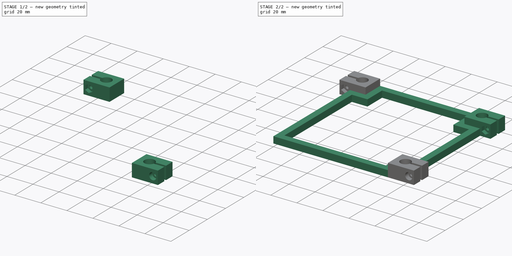
[diagram: build sequence overview — one tinted view per stage of 2, left to right]
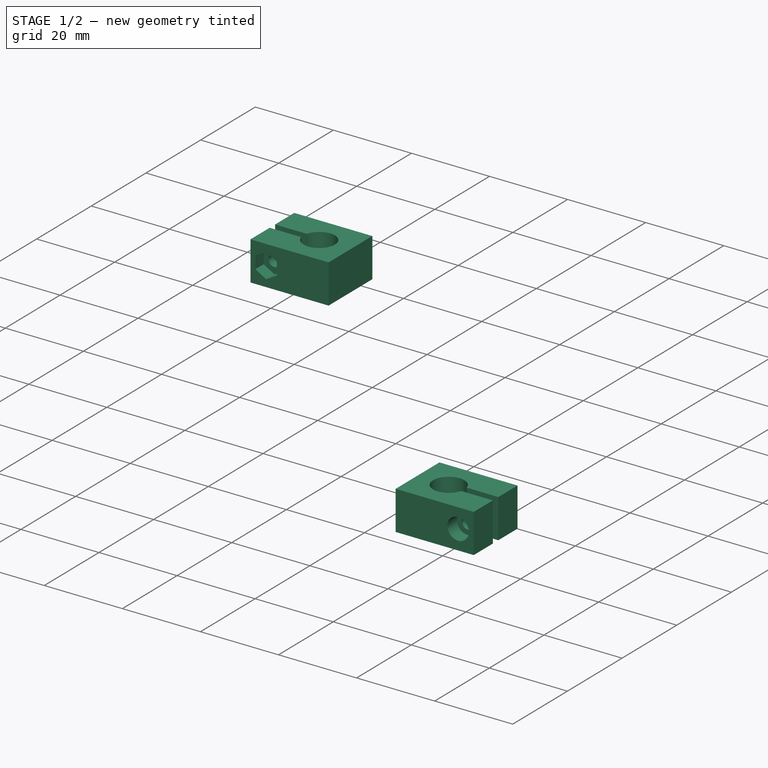
[diagram: stage 1 of 2 — iso view after this stage's code; geometry added in this stage tinted green]
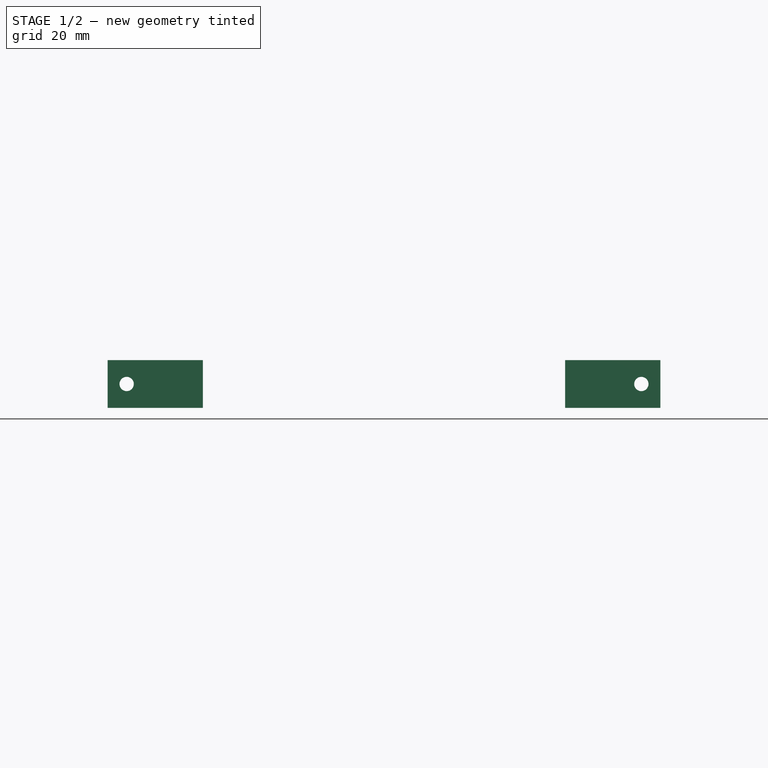
[diagram: stage 1 of 2 — front view after this stage's code; geometry added in this stage tinted green]
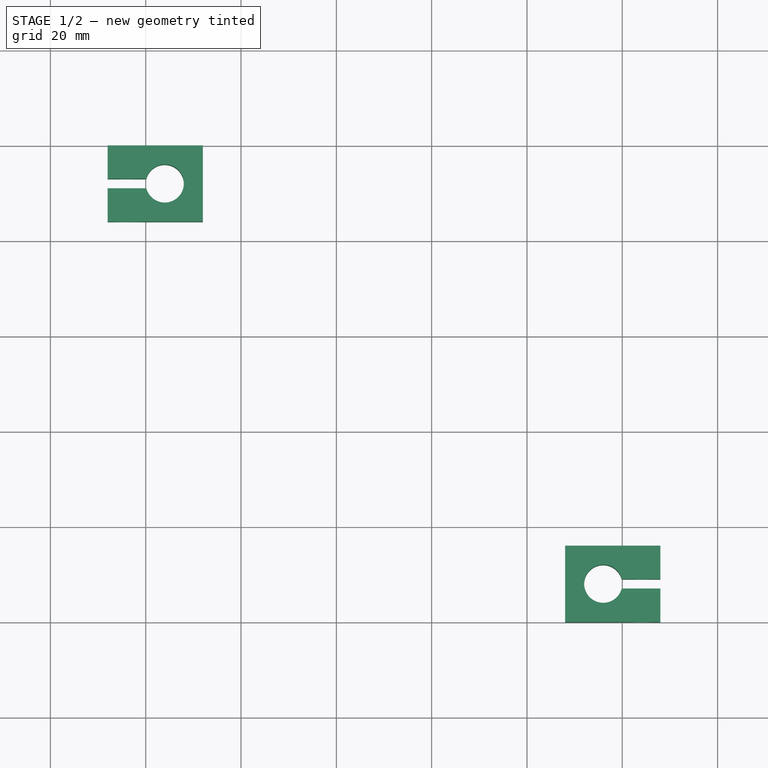
[diagram: stage 1 of 2 — top view after this stage's code; geometry added in this stage tinted green]
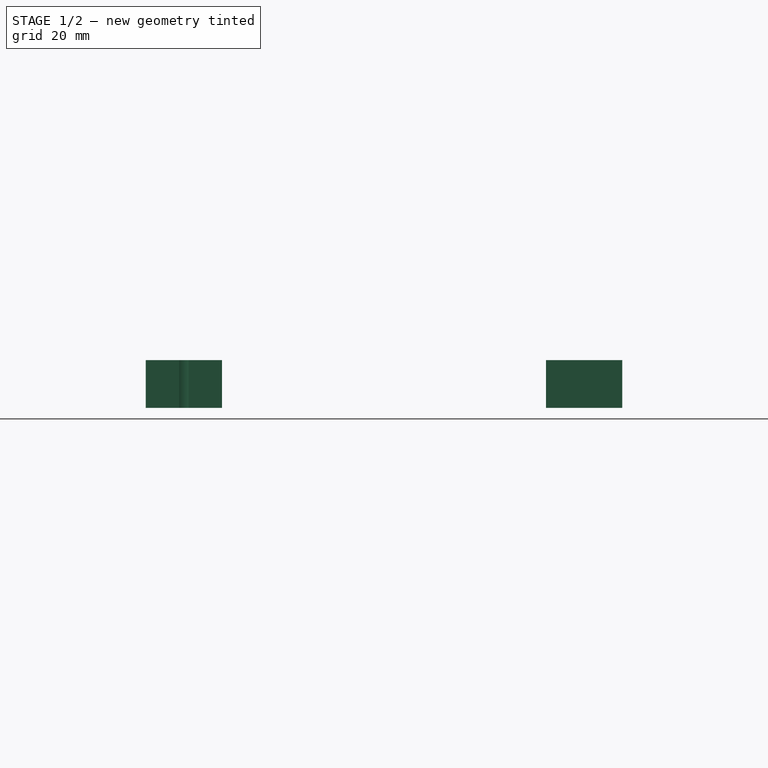
[diagram: stage 1 of 2 — right view after this stage's code; geometry added in this stage tinted green]
FCSTD DOCUMENT
Label: EndPlate
objects: PartDesign::Pocket×3, Sketcher::SketchObject×1, PartDesign::Pad×1
note: 6 computed .brp shape members not serialized (recipe doc carries the construction recipe); baked Part::Feature solids carry a one-line shape summary decoded from their .brp

FEATURE [PartDesign::Pocket] Pocket001  label="Clamp1"
  Length = 3
  Placement = pos=(12,84,10) rot=(0,1,0;3.14159rad)
  Type = 0
FEATURE [PartDesign::Pocket] Pocket002  label="Clamp2"
  Length = 3
  Placement = pos=(88,16,10) rot=(1,0,0;3.14159rad)
  Type = 0
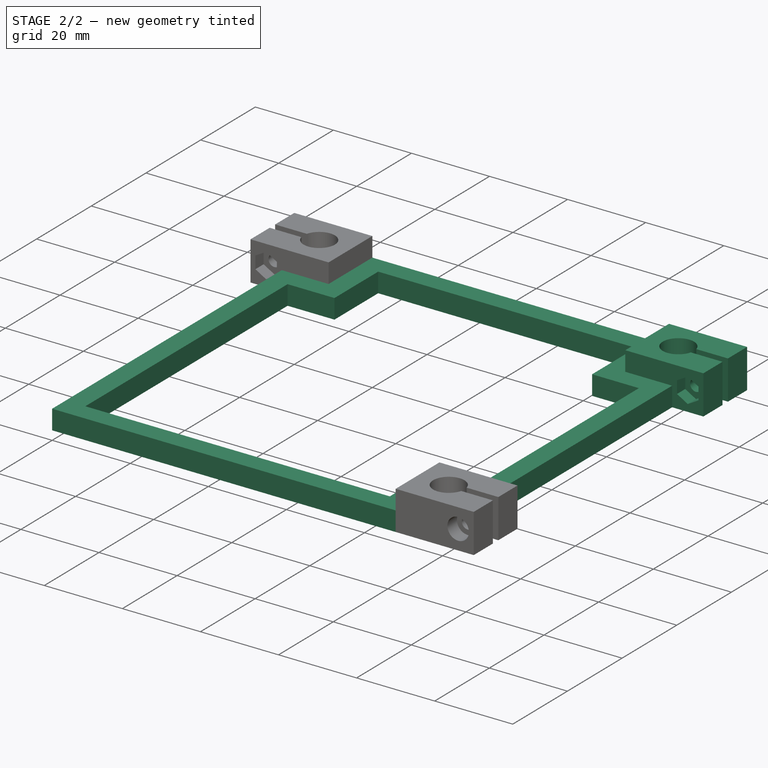
[diagram: stage 2 of 2 — iso view after this stage's code; geometry added in this stage tinted green]
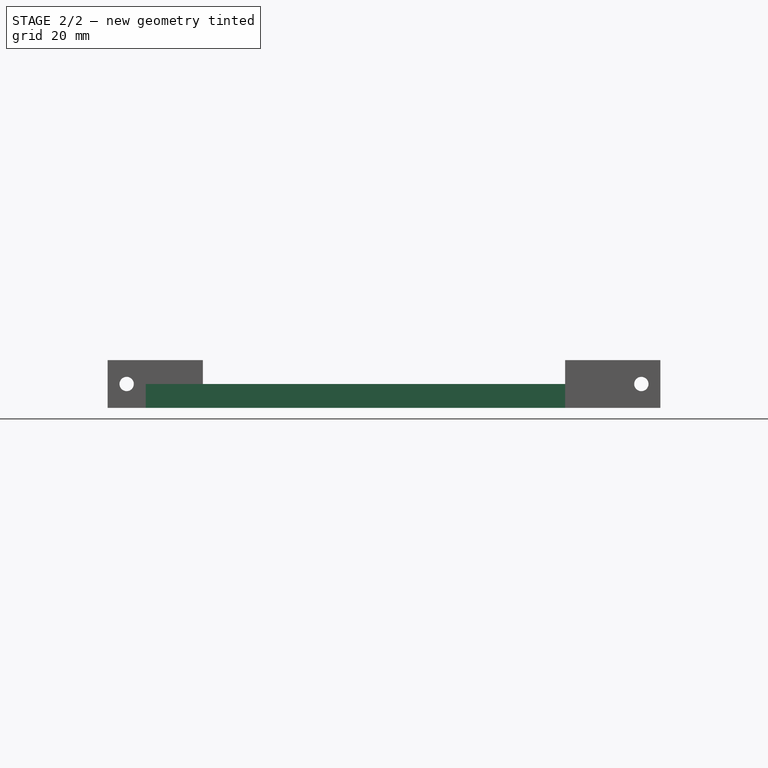
[diagram: stage 2 of 2 — front view after this stage's code; geometry added in this stage tinted green]
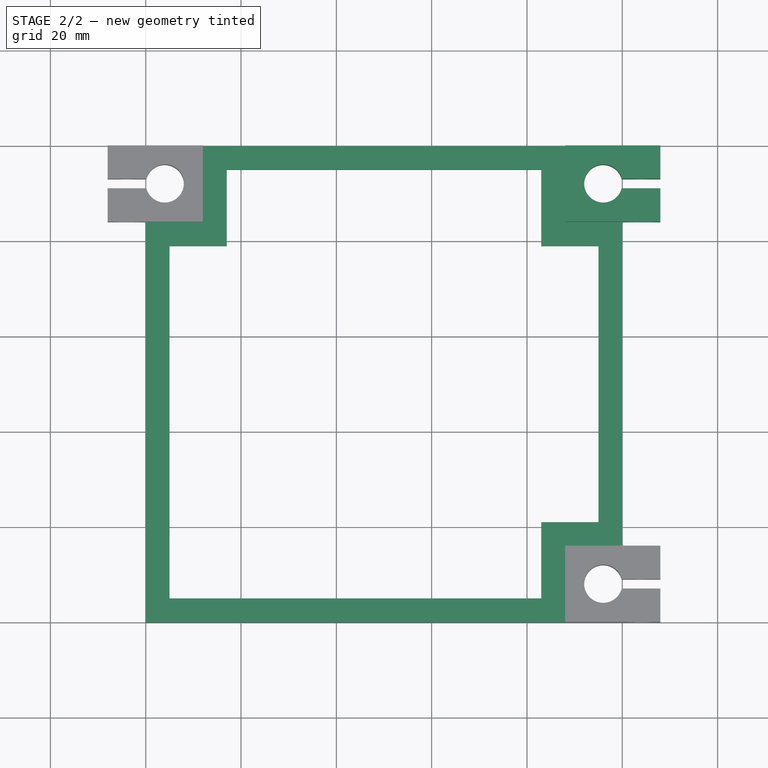
[diagram: stage 2 of 2 — top view after this stage's code; geometry added in this stage tinted green]
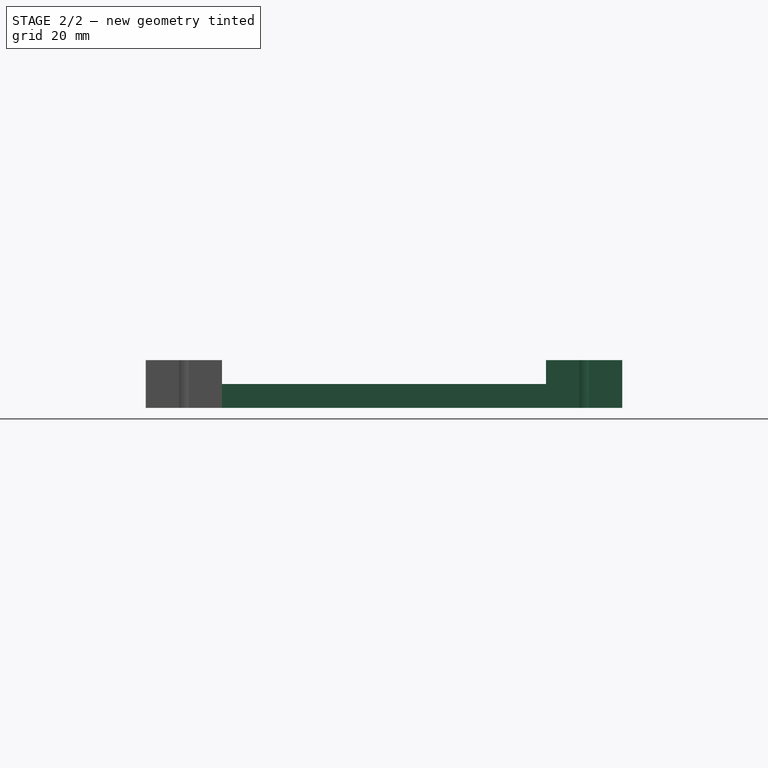
[diagram: stage 2 of 2 — right view after this stage's code; geometry added in this stage tinted green]
FEATURE [Sketcher::SketchObject] Sketch
  sketch-geometry (20):
    g0: LineSegment StartX=0 StartY=0 StartZ=0 EndX=0 EndY=84 EndZ=0
    g1: LineSegment StartX=12 StartY=100 StartZ=0 EndX=88 EndY=100 EndZ=0
    g2: LineSegment StartX=100 StartY=84 StartZ=0 EndX=100 EndY=16 EndZ=0
    g3: LineSegment StartX=88 StartY=0 StartZ=0 EndX=0 EndY=0 EndZ=0
    g4: LineSegment StartX=0 StartY=84 StartZ=0 EndX=12 EndY=84 EndZ=0
    g5: LineSegment StartX=12 StartY=84 StartZ=0 EndX=12 EndY=100 EndZ=0
    g6: LineSegment StartX=88 StartY=100 StartZ=0 EndX=88 EndY=84 EndZ=0
    g7: LineSegment StartX=88 StartY=84 StartZ=0 EndX=100 EndY=84 EndZ=0
    g8: LineSegment StartX=100 StartY=16 StartZ=0 EndX=88 EndY=16 EndZ=0
    g9: LineSegment StartX=88 StartY=16 StartZ=0 EndX=88 EndY=0 EndZ=0
    g10: LineSegment StartX=17 StartY=95 StartZ=0 EndX=83 EndY=95 EndZ=0
    g11: LineSegment StartX=83 StartY=95 StartZ=0 EndX=83 EndY=79 EndZ=0
    g12: LineSegment StartX=83 StartY=79 StartZ=0 EndX=95 EndY=79 EndZ=0
    g13: LineSegment StartX=95 StartY=79 StartZ=0 EndX=95 EndY=21 EndZ=0
    g14: LineSegment StartX=95 StartY=21 StartZ=0 EndX=83 EndY=21 EndZ=0
    g15: LineSegment StartX=83 StartY=21 StartZ=0 EndX=83 EndY=5 EndZ=0
    g16: LineSegment StartX=83 StartY=5 StartZ=0 EndX=5 EndY=5 EndZ=0
    g17: LineSegment StartX=5 StartY=5 StartZ=0 EndX=5 EndY=79 EndZ=0
    g18: LineSegment StartX=5 StartY=79 StartZ=0 EndX=17 EndY=79 EndZ=0
    g19: LineSegment StartX=17 StartY=79 StartZ=0 EndX=17 EndY=95 EndZ=0
  constraints (60):
    c: Vertical(g0)
    c: Horizontal(g1)
    c: Vertical(g2)
    c: Horizontal(g3)
    c: Coincident(g0,g3)
    c: DistanceX(g0) = 0
    c: DistanceY(g0) = 0
    c: Coincident(g4,g5)
    c: Vertical(g6)
    c: Coincident(g6,g7)
    c: Horizontal(g7)
    c: Horizontal(g8)
    c: Coincident(g8,g9)
    c: Vertical(g9)
    c: Vertical(g5)
    c: Horizontal(g4)
    c: Coincident(g8,g2)
    c: Coincident(g3,g9)
    c: Coincident(g6,g1)
    c: Coincident(g2,g7)
    c: Coincident(g5,g1)
    c: Coincident(g4,g0)
    c: DistanceY(g5) = 16
    c: DistanceX(g4) = 12
    c: DistanceX(g7) = 12
    c: DistanceY(g6) = -16
    c: DistanceX(g8) = -12
    c: DistanceY(g9) = -16
    c: DistanceY(g2) = -68
    c: DistanceX(g1) = 76
    c: Horizontal(g10)
    c: Coincident(g10,g11)
    c: Vertical(g11)
    c: Coincident(g11,g12)
    c: Horizontal(g12)
    c: Coincident(g12,g13)
    c: Vertical(g13)
    c: Coincident(g13,g14)
    c: Horizontal(g14)
    c: Coincident(g14,g15)
    c: Vertical(g15)
    c: Coincident(g15,g16)
    c: Horizontal(g16)
    c: Coincident(g16,g17)
    c: Vertical(g17)
    c: Coincident(g17,g18)
    c: Horizontal(g18)
    c: Coincident(g18,g19)
    c: Vertical(g19)
    c: Coincident(g10,g19)
    c: DistanceY(g10,g1) = 5
    c: DistanceX(g10,g1) = -5
    c: DistanceY(g0,g17) = -5
    c: DistanceX(g17,g0) = -5
    c: DistanceX(g10,g1) = 5
    c: DistanceX(g12,g2) = 5
    c: DistanceY(g12,g2) = 5
    c: DistanceX(g14,g8) = 5
    c: DistanceY(g14,g8) = -5
    c: DistanceY(g16,g0) = -5
FEATURE [PartDesign::Pad] Pad
  Length = 5
  MirroredExtent = false
  Sketch = -> Sketch
FEATURE [PartDesign::Pocket] Pocket  label="Clamp"
  Length = 3
  Placement = pos=(88,84,0) rot=(0,0,1;0rad)
  Type = 0
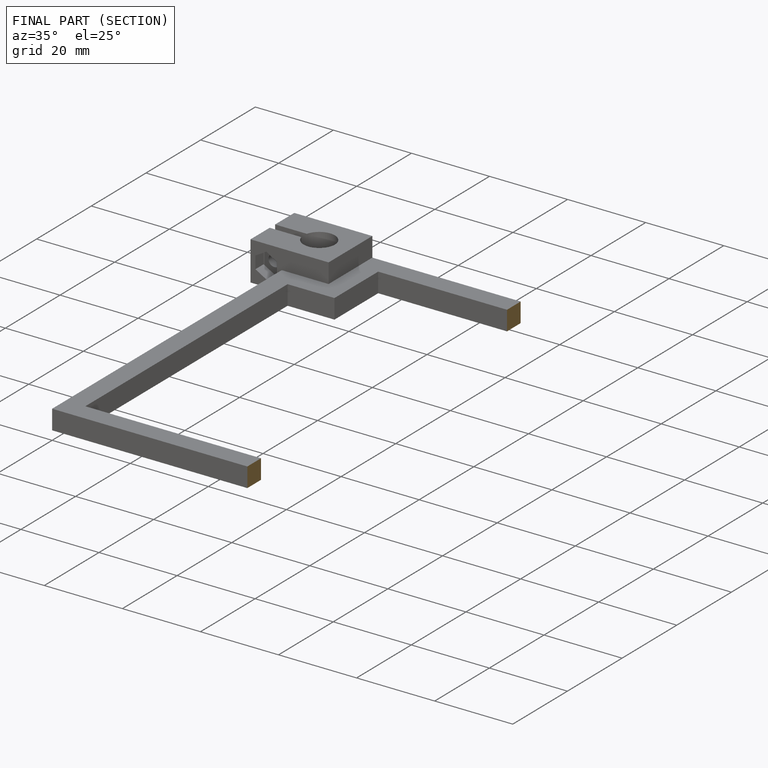
[diagram: finished part — half-section view (interior)]
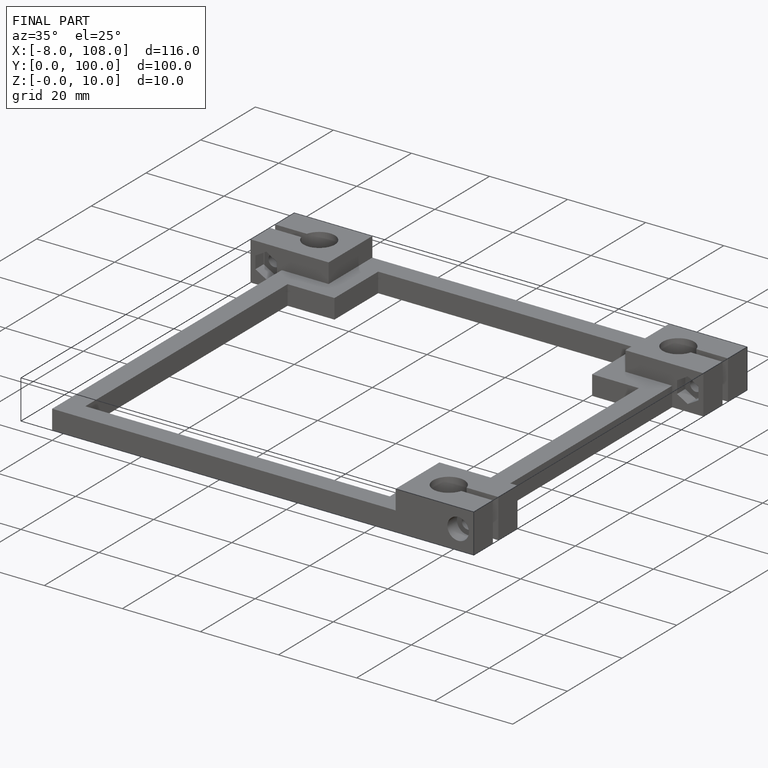
[diagram: finished part — iso view with bounding-box wireframe]
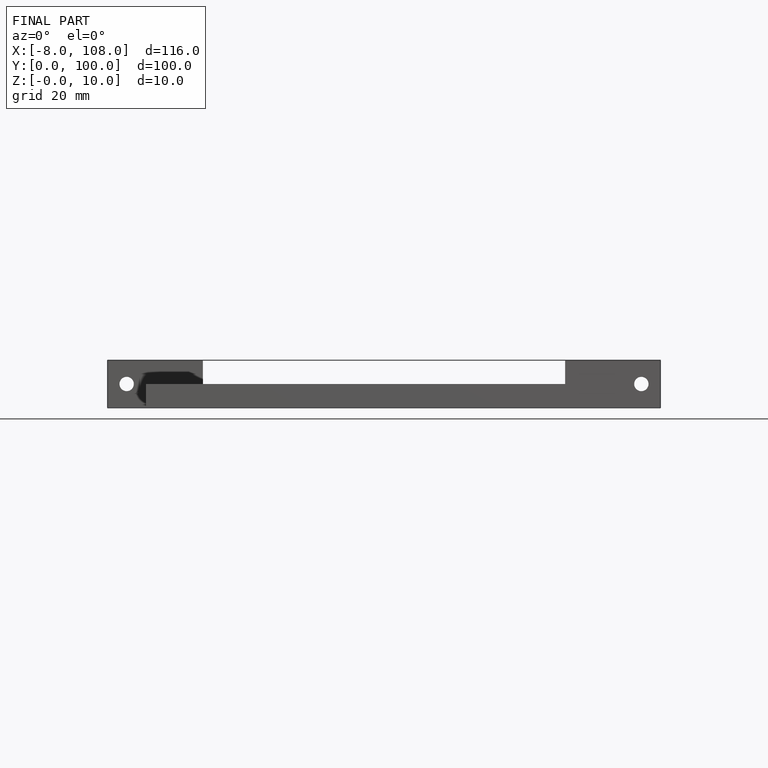
[diagram: finished part — front view with bounding-box wireframe]
